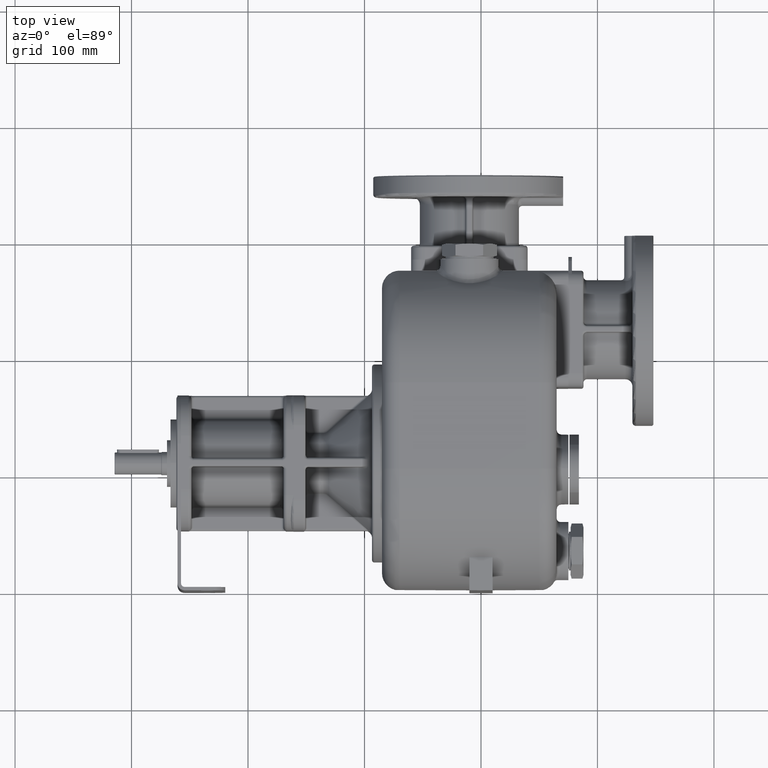
[diagram: clean part render]
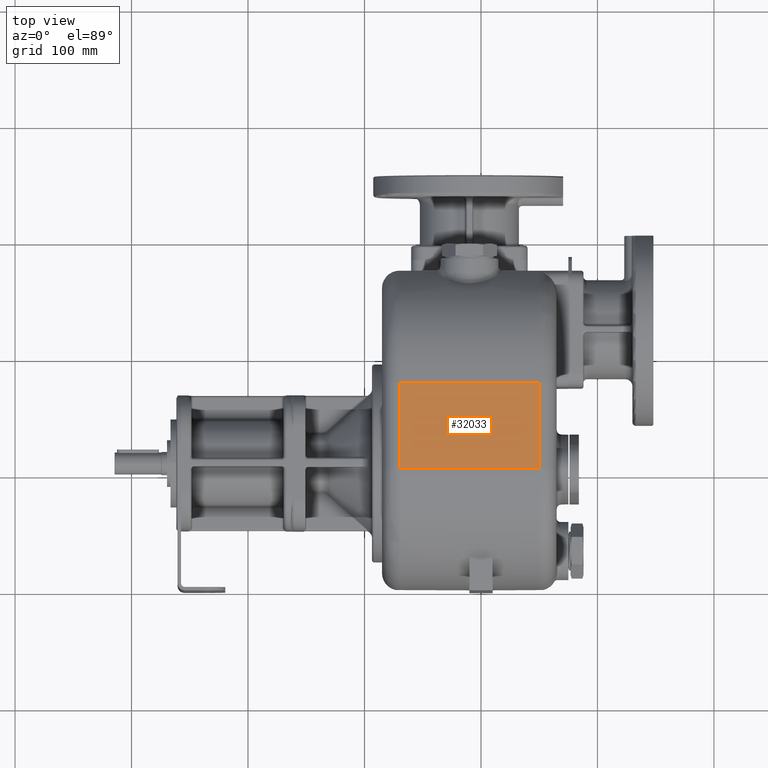
[diagram: same view with one face highlighted and labeled with its STEP entity id]
A machine part, top view. The second image highlights one B-rep face of the part: STEP entity #32033.
In plain terms, the highlighted planar face has unit normal (0, 0, 1).
Its self-contained STEP definition (entity closure, byte-faithful):
#11927=DIRECTION('',(1.E0,8.171241461241E-14,0.E0));
#11928=VECTOR('',#11927,1.2E2);
#11929=CARTESIAN_POINT('',(-7.E1,1.779157701946E2,1.03E2));
#11930=LINE('',#11929,#11928);
#12078=DIRECTION('',(0.E0,1.E0,0.E0));
#12079=VECTOR('',#12078,7.391577019463E1);
#12080=CARTESIAN_POINT('',(-7.E1,1.04E2,1.03E2));
#12081=LINE('',#12080,#12079);
#12082=DIRECTION('',(0.E0,-1.E0,0.E0));
#12083=VECTOR('',#12082,7.391577019462E1);
#12084=CARTESIAN_POINT('',(5.E1,1.779157701947E2,1.03E2));
#12085=LINE('',#12084,#12083);
#12086=DIRECTION('',(1.E0,1.194896033970E-13,0.E0));
#12087=VECTOR('',#12086,1.2E2);
#12088=CARTESIAN_POINT('',(-7.E1,1.04E2,1.03E2));
#12089=LINE('',#12088,#12087);
#15833=CARTESIAN_POINT('',(5.E1,1.04E2,1.03E2));
#15834=VERTEX_POINT('',#15833);
#15839=CARTESIAN_POINT('',(5.E1,1.779157701947E2,1.03E2));
#15840=VERTEX_POINT('',#15839);
#15869=CARTESIAN_POINT('',(-7.E1,1.04E2,1.03E2));
#15870=VERTEX_POINT('',#15869);
#15873=CARTESIAN_POINT('',(-7.E1,1.779157701946E2,1.03E2));
#15874=VERTEX_POINT('',#15873);
#32021=CARTESIAN_POINT('',(-8.5E1,1.04E2,1.03E2));
#32022=DIRECTION('',(0.E0,0.E0,1.E0));
#32023=DIRECTION('',(0.E0,1.E0,0.E0));
#32024=AXIS2_PLACEMENT_3D('',#32021,#32022,#32023);
#32025=PLANE('',#32024);
#32026=ORIENTED_EDGE('',*,*,#31957,.T.);
#32027=ORIENTED_EDGE('',*,*,#31985,.T.);
#32028=ORIENTED_EDGE('',*,*,#32015,.T.);
#32030=ORIENTED_EDGE('',*,*,#32029,.F.);
#32031=EDGE_LOOP('',(#32026,#32027,#32028,#32030));
#32032=FACE_OUTER_BOUND('',#32031,.F.);
#32033=ADVANCED_FACE('',(#32032),#32025,.T.);
#31957=EDGE_CURVE('',#15870,#15874,#12081,.T.);
#31985=EDGE_CURVE('',#15874,#15840,#11930,.T.);
#32015=EDGE_CURVE('',#15840,#15834,#12085,.T.);
#32029=EDGE_CURVE('',#15870,#15834,#12089,.T.);